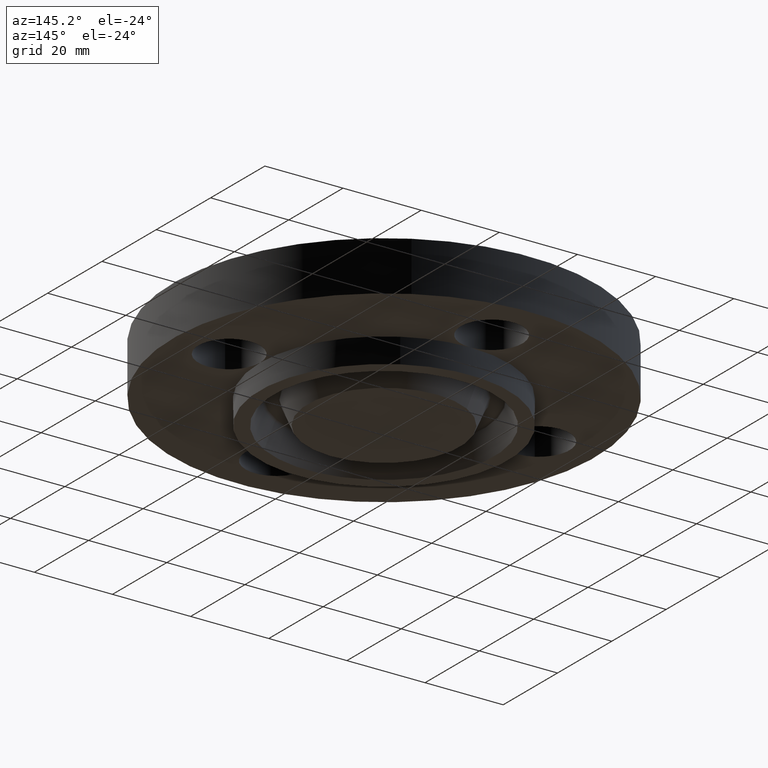
[diagram: clean part render]
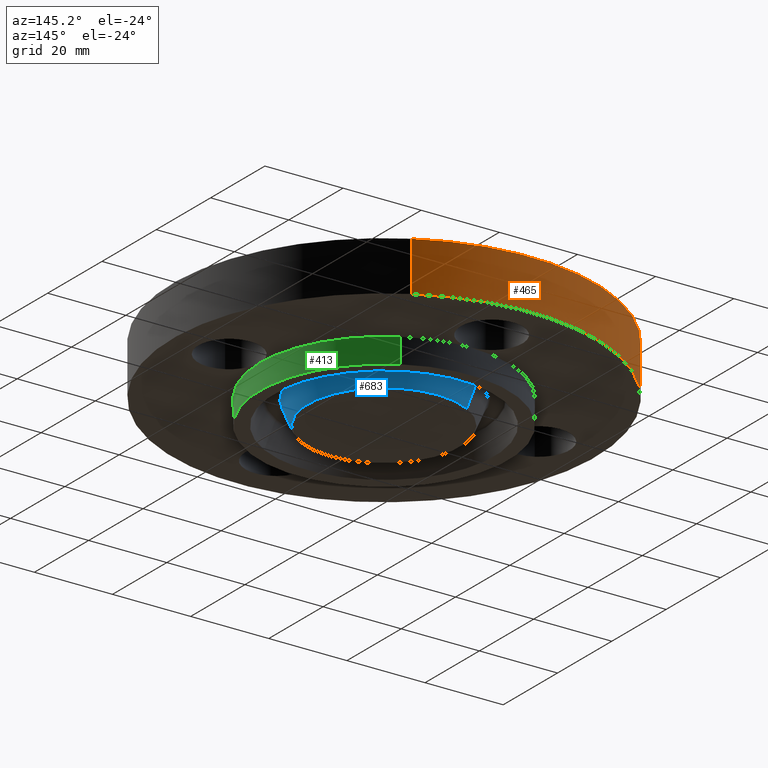
[diagram: same view with three faces highlighted in distinct colors, each labeled with its STEP entity id]
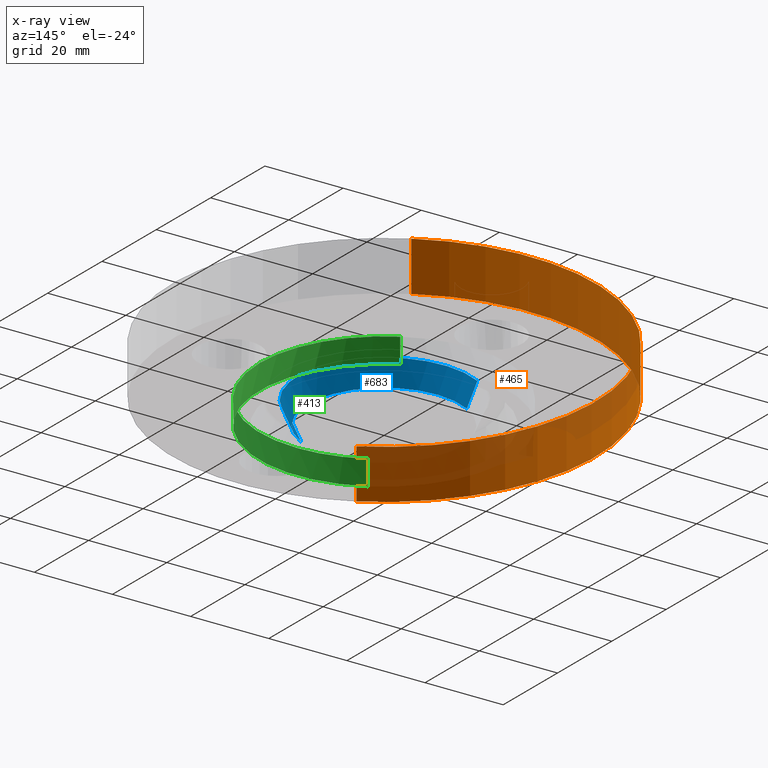
[diagram: x-ray of the same camera — body ghosted, the three highlighted faces saturated]
A machine part, auxiliary view with three faces highlighted in distinct colors.
The next image is the same camera in x-ray (body ghosted, the three faces saturated) — at least one of them is partly hidden behind the body in this view.
Their STEP definitions:

[orange] entity #465 — the highlighted cylindrical surface (partial cylindrical patch) has radius 53.975 mm, axis along (0, 0, -1).
#298=AXIS2_PLACEMENT_3D('Circle Axis2P3D',#296,#297,$) ;
#426=AXIS2_PLACEMENT_3D('Cylinder Axis2P3D',#423,#424,#425) ;
#456=AXIS2_PLACEMENT_3D('Circle Axis2P3D',#454,#455,$) ;
#296=CARTESIAN_POINT('Axis2P3D Location',(0.,0.,0.)) ;
#300=CARTESIAN_POINT('Vertex',(-1.01877926954,-1.86486294402,1.22386790116E-016)) ;
#302=CARTESIAN_POINT('Vertex',(1.01877926954,1.86486294402,1.22386790116E-016)) ;
#423=CARTESIAN_POINT('Axis2P3D Location',(0.,0.,0.125000000001)) ;
#428=CARTESIAN_POINT('Line Origine',(1.01877926954,1.86486294402,0.250000000001)) ;
#432=CARTESIAN_POINT('Vertex',(1.01877926954,1.86486294402,0.500000000002)) ;
#439=CARTESIAN_POINT('Vertex',(-1.01877926954,-1.86486294402,0.500000000002)) ;
#442=CARTESIAN_POINT('Line Origine',(-1.01877926954,-1.86486294402,0.250000000001)) ;
#454=CARTESIAN_POINT('Axis2P3D Location',(0.,0.,0.500000000002)) ;
#297=DIRECTION('Axis2P3D Direction',(0.,0.,-0.0393700787402)) ;
#424=DIRECTION('Axis2P3D Direction',(0.,0.,-0.0393700787402)) ;
#425=DIRECTION('Axis2P3D XDirection',(-0.0188750212049,-0.0345504945626,0.)) ;
#429=DIRECTION('Vector Direction',(0.,0.,-0.0393700787402)) ;
#443=DIRECTION('Vector Direction',(0.,0.,-0.0393700787402)) ;
#455=DIRECTION('Axis2P3D Direction',(0.,0.,-0.0393700787402)) ;
#430=VECTOR('Line Direction',#429,0.0393700787402) ;
#444=VECTOR('Line Direction',#443,0.0393700787402) ;
#460=ORIENTED_EDGE('',*,*,#304,.F.) ;
#461=ORIENTED_EDGE('',*,*,#446,.T.) ;
#462=ORIENTED_EDGE('',*,*,#458,.T.) ;
#463=ORIENTED_EDGE('',*,*,#434,.F.) ;
#465=ADVANCED_FACE('PartBody',(#464),#427,.T.) ;
#299=CIRCLE('generated circle',#298,2.12500000001) ;
#457=CIRCLE('generated circle',#456,2.12500000001) ;
#427=CYLINDRICAL_SURFACE('generated cylinder',#426,2.12500000001) ;
#304=EDGE_CURVE('',#301,#303,#299,.T.) ;
#434=EDGE_CURVE('',#303,#433,#431,.F.) ;
#446=EDGE_CURVE('',#301,#440,#445,.F.) ;
#458=EDGE_CURVE('',#440,#433,#457,.T.) ;
#459=EDGE_LOOP('',(#460,#461,#462,#463)) ;
#464=FACE_OUTER_BOUND('',#459,.T.) ;
#431=LINE('Line',#428,#430) ;
#445=LINE('Line',#442,#444) ;
#301=VERTEX_POINT('',#300) ;
#303=VERTEX_POINT('',#302) ;
#433=VERTEX_POINT('',#432) ;
#440=VERTEX_POINT('',#439) ;

[blue] entity #683 — the highlighted conical surface has half-angle 23 deg.
#42=AXIS2_PLACEMENT_3D('Circle Axis2P3D',#40,#41,$) ;
#633=AXIS2_PLACEMENT_3D('Circle Axis2P3D',#631,#632,$) ;
#665=AXIS2_PLACEMENT_3D('Cone Axis2P3D',#662,#663,#664) ;
#40=CARTESIAN_POINT('Axis2P3D Location',(-2.79741234551E-016,1.04902962957E-016,-0.250000000001)) ;
#44=CARTESIAN_POINT('Vertex',(-0.367060177995,0.67189914895,-0.250000000001)) ;
#46=CARTESIAN_POINT('Vertex',(0.367060177995,-0.67189914895,-0.250000000001)) ;
#628=CARTESIAN_POINT('Vertex',(0.41406154817,-0.757934579959,-0.0190396522348)) ;
#631=CARTESIAN_POINT('Axis2P3D Location',(0.,0.,-0.0190396522348)) ;
#635=CARTESIAN_POINT('Vertex',(-0.41406154817,0.757934579959,-0.0190396522348)) ;
#662=CARTESIAN_POINT('Axis2P3D Location',(0.,0.,-0.310000000001)) ;
#667=CARTESIAN_POINT('Line Origine',(-0.390560863083,0.714916864455,-0.134519826118)) ;
#672=CARTESIAN_POINT('Line Origine',(0.390560863083,-0.714916864455,-0.134519826118)) ;
#41=DIRECTION('Axis2P3D Direction',(0.,0.,-0.0393700787402)) ;
#632=DIRECTION('Axis2P3D Direction',(0.,0.,0.0393700787402)) ;
#663=DIRECTION('Axis2P3D Direction',(0.,0.,0.0393700787402)) ;
#664=DIRECTION('Axis2P3D XDirection',(-0.0188750212049,0.0345504945626,0.)) ;
#668=DIRECTION('Vector Direction',(-0.00737505833565,0.0134999537303,0.0362403485611)) ;
#673=DIRECTION('Vector Direction',(0.00737505833565,-0.0134999537303,0.0362403485611)) ;
#669=VECTOR('Line Direction',#668,0.0393700787402) ;
#674=VECTOR('Line Direction',#673,0.0393700787402) ;
#678=ORIENTED_EDGE('',*,*,#671,.F.) ;
#679=ORIENTED_EDGE('',*,*,#637,.F.) ;
#680=ORIENTED_EDGE('',*,*,#676,.T.) ;
#681=ORIENTED_EDGE('',*,*,#48,.F.) ;
#683=ADVANCED_FACE('PartBody',(#682),#666,.T.) ;
#43=CIRCLE('generated circle',#42,0.765625000003) ;
#634=CIRCLE('generated circle',#633,0.863661851173) ;
#666=CONICAL_SURFACE('Cone',#665,0.74015651103,0.401425727959) ;
#48=EDGE_CURVE('',#45,#47,#43,.T.) ;
#637=EDGE_CURVE('',#629,#636,#634,.T.) ;
#671=EDGE_CURVE('',#636,#45,#670,.F.) ;
#676=EDGE_CURVE('',#629,#47,#675,.F.) ;
#677=EDGE_LOOP('',(#678,#679,#680,#681)) ;
#682=FACE_OUTER_BOUND('',#677,.T.) ;
#670=LINE('Line',#667,#669) ;
#675=LINE('Line',#672,#674) ;
#45=VERTEX_POINT('',#44) ;
#47=VERTEX_POINT('',#46) ;
#629=VERTEX_POINT('',#628) ;
#636=VERTEX_POINT('',#635) ;

[green] entity #413 — the highlighted cylindrical surface (partial cylindrical patch) has radius 31.75 mm, axis along (0, 0, -1).
#61=AXIS2_PLACEMENT_3D('Circle Axis2P3D',#59,#60,$) ;
#316=AXIS2_PLACEMENT_3D('Circle Axis2P3D',#314,#315,$) ;
#321=AXIS2_PLACEMENT_3D('Circle Axis2P3D',#319,#320,$) ;
#366=AXIS2_PLACEMENT_3D('Circle Axis2P3D',#364,#365,$) ;
#393=AXIS2_PLACEMENT_3D('Cylinder Axis2P3D',#390,#391,#392) ;
#59=CARTESIAN_POINT('Axis2P3D Location',(0.,0.,-0.250000000001)) ;
#63=CARTESIAN_POINT('Vertex',(0.599281923258,1.09697820237,-0.250000000001)) ;
#65=CARTESIAN_POINT('Vertex',(-0.599281923258,-1.09697820237,-0.250000000001)) ;
#114=CARTESIAN_POINT('Vertex',(-3.41023299848E-016,-1.25000000001,0.)) ;
#244=CARTESIAN_POINT('Vertex',(1.25000000001,2.79741234551E-016,0.)) ;
#314=CARTESIAN_POINT('Axis2P3D Location',(0.,0.,0.)) ;
#319=CARTESIAN_POINT('Axis2P3D Location',(0.,0.,0.)) ;
#323=CARTESIAN_POINT('Vertex',(0.599281923258,1.09697820237,1.04902962957E-016)) ;
#361=CARTESIAN_POINT('Vertex',(-0.599281923258,-1.09697820237,1.04902962957E-016)) ;
#364=CARTESIAN_POINT('Axis2P3D Location',(0.,0.,0.)) ;
#390=CARTESIAN_POINT('Axis2P3D Location',(0.,0.,0.125000000001)) ;
#395=CARTESIAN_POINT('Line Origine',(0.599281923258,1.09697820237,-0.125000000001)) ;
#400=CARTESIAN_POINT('Line Origine',(-0.599281923258,-1.09697820237,-0.125000000001)) ;
#60=DIRECTION('Axis2P3D Direction',(0.,0.,-0.0393700787402)) ;
#315=DIRECTION('Axis2P3D Direction',(0.,0.,-0.0393700787402)) ;
#320=DIRECTION('Axis2P3D Direction',(0.,0.,-0.0393700787402)) ;
#365=DIRECTION('Axis2P3D Direction',(0.,0.,-0.0393700787402)) ;
#391=DIRECTION('Axis2P3D Direction',(0.,0.,-0.0393700787402)) ;
#392=DIRECTION('Axis2P3D XDirection',(-0.0188750212049,-0.0345504945626,0.)) ;
#396=DIRECTION('Vector Direction',(0.,0.,-0.0393700787402)) ;
#401=DIRECTION('Vector Direction',(0.,0.,-0.0393700787402)) ;
#397=VECTOR('Line Direction',#396,0.0393700787402) ;
#402=VECTOR('Line Direction',#401,0.0393700787402) ;
#406=ORIENTED_EDGE('',*,*,#67,.F.) ;
#407=ORIENTED_EDGE('',*,*,#399,.T.) ;
#408=ORIENTED_EDGE('',*,*,#325,.T.) ;
#409=ORIENTED_EDGE('',*,*,#318,.T.) ;
#410=ORIENTED_EDGE('',*,*,#368,.T.) ;
#411=ORIENTED_EDGE('',*,*,#404,.F.) ;
#413=ADVANCED_FACE('PartBody',(#412),#394,.T.) ;
#62=CIRCLE('generated circle',#61,1.25) ;
#317=CIRCLE('generated circle',#316,1.25) ;
#322=CIRCLE('generated circle',#321,1.25) ;
#367=CIRCLE('generated circle',#366,1.25) ;
#394=CYLINDRICAL_SURFACE('generated cylinder',#393,1.25) ;
#67=EDGE_CURVE('',#64,#66,#62,.T.) ;
#318=EDGE_CURVE('',#245,#115,#317,.T.) ;
#325=EDGE_CURVE('',#324,#245,#322,.T.) ;
#368=EDGE_CURVE('',#115,#362,#367,.T.) ;
#399=EDGE_CURVE('',#64,#324,#398,.F.) ;
#404=EDGE_CURVE('',#66,#362,#403,.F.) ;
#405=EDGE_LOOP('',(#406,#407,#408,#409,#410,#411)) ;
#412=FACE_OUTER_BOUND('',#405,.T.) ;
#398=LINE('Line',#395,#397) ;
#403=LINE('Line',#400,#402) ;
#64=VERTEX_POINT('',#63) ;
#66=VERTEX_POINT('',#65) ;
#115=VERTEX_POINT('',#114) ;
#245=VERTEX_POINT('',#244) ;
#324=VERTEX_POINT('',#323) ;
#362=VERTEX_POINT('',#361) ;